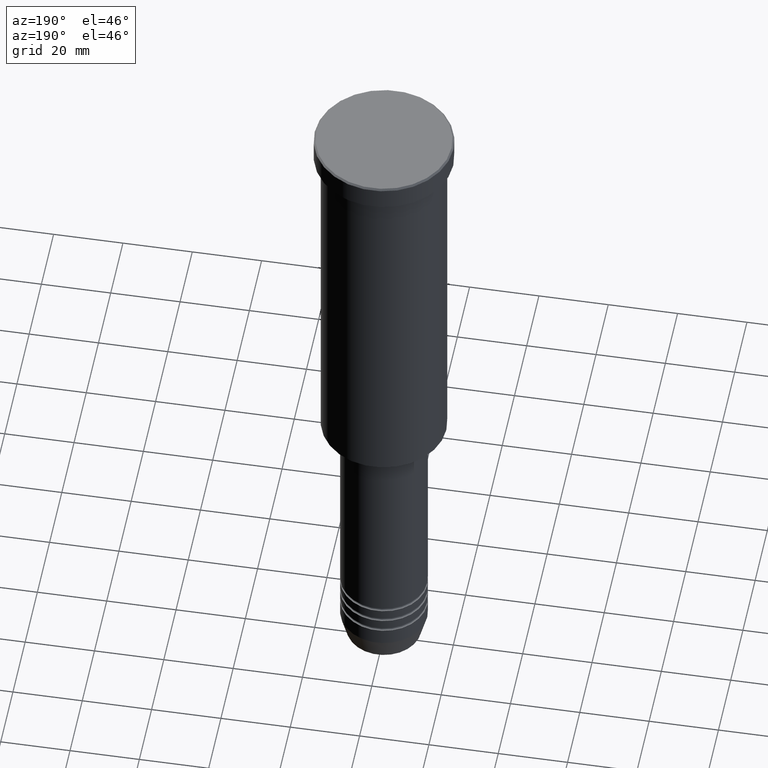
[diagram: clean part render]
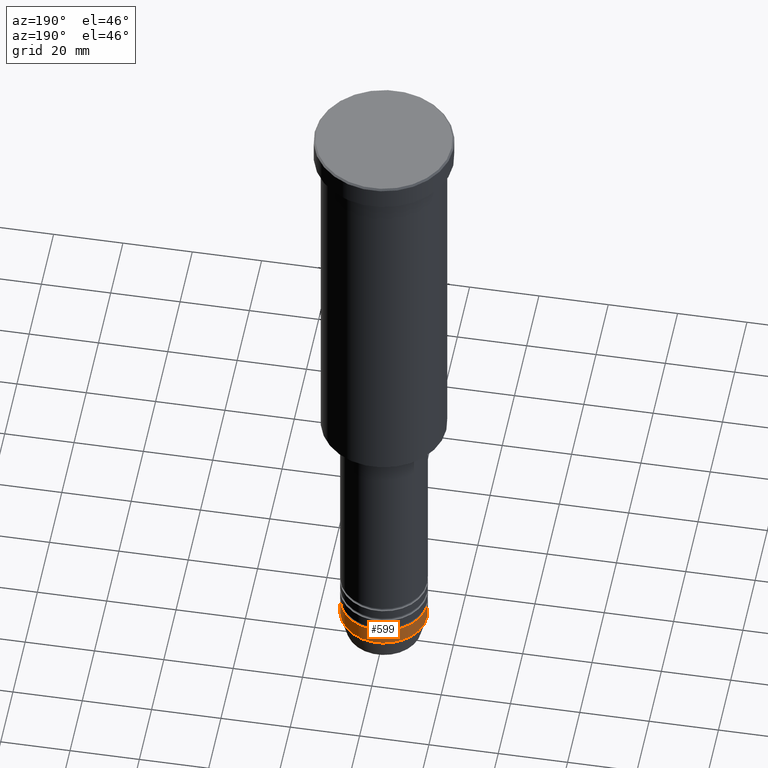
[diagram: same view with one face highlighted and labeled with its STEP entity id]
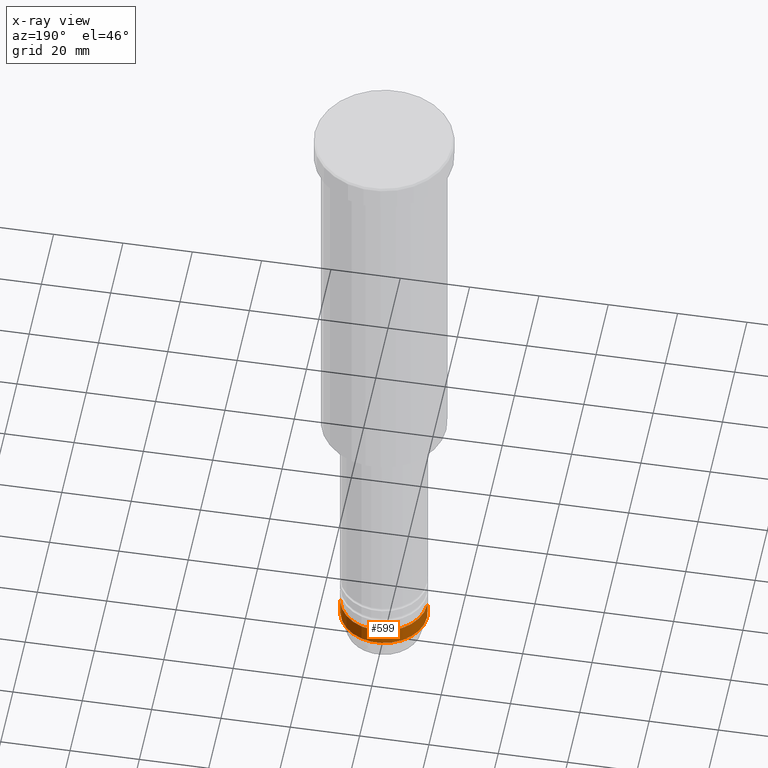
[diagram: x-ray of the same camera — body ghosted, the highlighted face saturated]
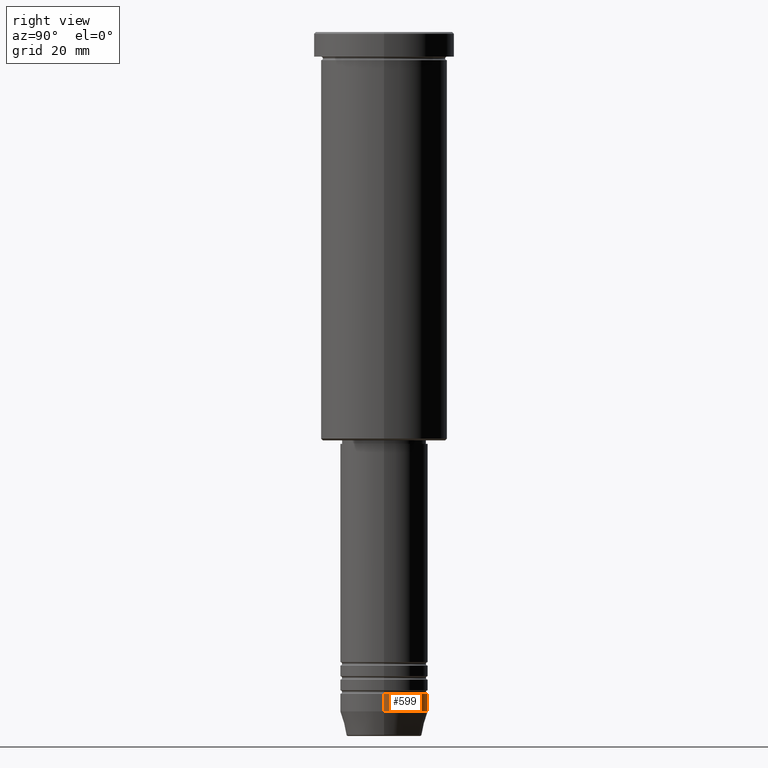
[diagram: same view with one face highlighted and labeled with its STEP entity id]
A machine part, auxiliary view. The second image highlights one B-rep face of the part: STEP entity #599.
The next image is the same camera in x-ray: the body ghosted, the highlighted face saturated — about 0% of this face is hidden behind the body in this view.
A second angle (right view) of the same face is appended — the face is thin or edge-on in the first view.
In plain terms, the highlighted cylindrical surface (partial cylindrical patch) has radius 12.5 mm, axis along (-0, -0, 1).
Its self-contained STEP definition (entity closure, byte-faithful):
#30 = VERTEX_POINT ( 'NONE', #372 ) ;
#88 = CYLINDRICAL_SURFACE ( 'NONE', #897, 12.50000000000000000 ) ;
#99 = VECTOR ( 'NONE', #335, 1000.000000000000000 ) ;
#103 = ORIENTED_EDGE ( 'NONE', *, *, #681, .T. ) ;
#119 = AXIS2_PLACEMENT_3D ( 'NONE', #804, #893, #1174 ) ;
#141 = DIRECTION ( 'NONE',  ( 1.000000000000000000, 0.000000000000000000, 0.000000000000000000 ) ) ;
#163 = VERTEX_POINT ( 'NONE', #1025 ) ;
#199 = ORIENTED_EDGE ( 'NONE', *, *, #848, .F. ) ;
#219 = LINE ( 'NONE', #752, #954 ) ;
#242 = FACE_OUTER_BOUND ( 'NONE', #1148, .T. ) ;
#256 = CARTESIAN_POINT ( 'NONE',  ( -12.50000000000000000, 1.530808498934191521E-15, 0.000000000000000000 ) ) ;
#335 = DIRECTION ( 'NONE',  ( -0.000000000000000000, -0.000000000000000000, 1.000000000000000000 ) ) ;
#372 = CARTESIAN_POINT ( 'NONE',  ( 12.50000000000000000, 0.000000000000000000, -193.0000000000000284 ) ) ;
#394 = CARTESIAN_POINT ( 'NONE',  ( 0.000000000000000000, 0.000000000000000000, -188.0000000000000284 ) ) ;
#407 = EDGE_CURVE ( 'NONE', #462, #163, #952, .T. ) ;
#429 = AXIS2_PLACEMENT_3D ( 'NONE', #394, #944, #141 ) ;
#462 = VERTEX_POINT ( 'NONE', #755 ) ;
#599 = ADVANCED_FACE ( 'NONE', ( #242 ), #88, .T. ) ;
#679 = CIRCLE ( 'NONE', #119, 12.50000000000000000 ) ;
#681 = EDGE_CURVE ( 'NONE', #30, #905, #679, .T. ) ;
#752 = CARTESIAN_POINT ( 'NONE',  ( 12.50000000000000000, 0.000000000000000000, 0.000000000000000000 ) ) ;
#755 = CARTESIAN_POINT ( 'NONE',  ( 12.50000000000000000, 0.000000000000000000, -188.0000000000000284 ) ) ;
#796 = DIRECTION ( 'NONE',  ( -0.000000000000000000, -0.000000000000000000, 1.000000000000000000 ) ) ;
#804 = CARTESIAN_POINT ( 'NONE',  ( 0.000000000000000000, 0.000000000000000000, -193.0000000000000284 ) ) ;
#848 = EDGE_CURVE ( 'NONE', #30, #462, #219, .T. ) ;
#893 = DIRECTION ( 'NONE',  ( -0.000000000000000000, -0.000000000000000000, 1.000000000000000000 ) ) ;
#894 = ORIENTED_EDGE ( 'NONE', *, *, #984, .T. ) ;
#897 = AXIS2_PLACEMENT_3D ( 'NONE', #1164, #796, #1167 ) ;
#905 = VERTEX_POINT ( 'NONE', #1132 ) ;
#909 = ORIENTED_EDGE ( 'NONE', *, *, #407, .F. ) ;
#942 = DIRECTION ( 'NONE',  ( -0.000000000000000000, -0.000000000000000000, 1.000000000000000000 ) ) ;
#944 = DIRECTION ( 'NONE',  ( -0.000000000000000000, -0.000000000000000000, 1.000000000000000000 ) ) ;
#952 = CIRCLE ( 'NONE', #429, 12.50000000000000000 ) ;
#954 = VECTOR ( 'NONE', #942, 1000.000000000000000 ) ;
#963 = LINE ( 'NONE', #256, #99 ) ;
#984 = EDGE_CURVE ( 'NONE', #905, #163, #963, .T. ) ;
#1025 = CARTESIAN_POINT ( 'NONE',  ( -12.50000000000000000, 1.530808498934191521E-15, -188.0000000000000284 ) ) ;
#1132 = CARTESIAN_POINT ( 'NONE',  ( -12.50000000000000000, 1.530808498934191521E-15, -193.0000000000000284 ) ) ;
#1148 = EDGE_LOOP ( 'NONE', ( #103, #894, #909, #199 ) ) ;
#1164 = CARTESIAN_POINT ( 'NONE',  ( 0.000000000000000000, 0.000000000000000000, 0.000000000000000000 ) ) ;
#1167 = DIRECTION ( 'NONE',  ( 1.000000000000000000, 0.000000000000000000, 0.000000000000000000 ) ) ;
#1174 = DIRECTION ( 'NONE',  ( 1.000000000000000000, 0.000000000000000000, 0.000000000000000000 ) ) ;